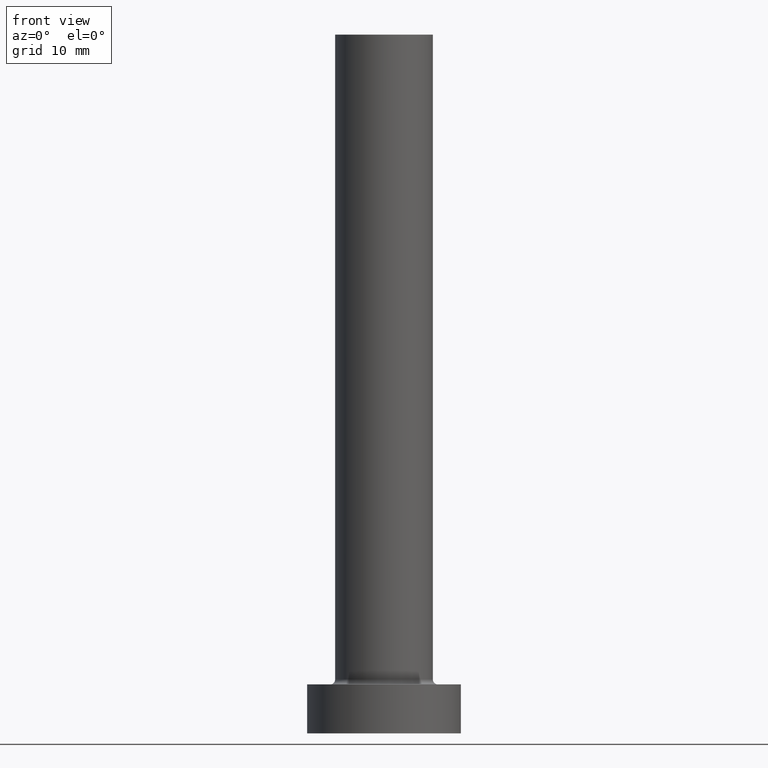
[diagram: clean part render]
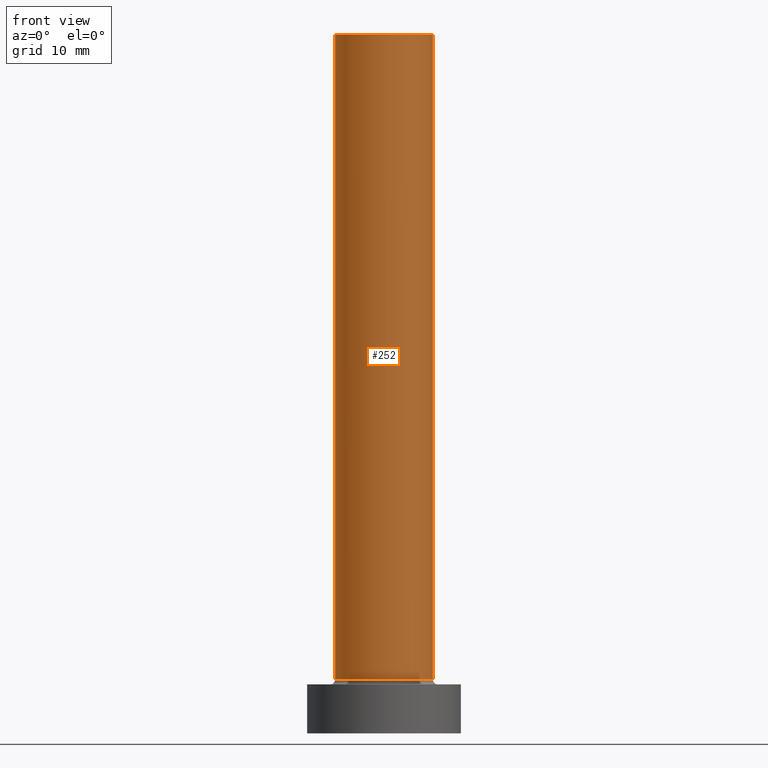
[diagram: same view with one face highlighted and labeled with its STEP entity id]
A machine part, front view. The second image highlights one B-rep face of the part: STEP entity #252.
In plain terms, the highlighted cylindrical surface (partial cylindrical patch) has radius 7 mm, axis along (-0, -0, -1).
Its self-contained STEP definition (entity closure, byte-faithful):
#9 = CARTESIAN_POINT ( 'NONE',  ( 0.000000000000000000, 0.000000000000000000, 100.0000000000000000 ) ) ;
#20 = FACE_OUTER_BOUND ( 'NONE', #74, .T. ) ;
#25 = CARTESIAN_POINT ( 'NONE',  ( 7.000000000000000888, 8.572527594031472204E-16, 100.0000000000000000 ) ) ;
#27 = AXIS2_PLACEMENT_3D ( 'NONE', #91, #236, #455 ) ;
#42 = VERTEX_POINT ( 'NONE', #58 ) ;
#43 = DIRECTION ( 'NONE',  ( -1.000000000000000000, 0.000000000000000000, 0.000000000000000000 ) ) ;
#44 = AXIS2_PLACEMENT_3D ( 'NONE', #9, #361, #43 ) ;
#58 = CARTESIAN_POINT ( 'NONE',  ( -7.000000000000000888, 0.000000000000000000, 7.699999999999998401 ) ) ;
#66 = LINE ( 'NONE', #25, #295 ) ;
#69 = EDGE_CURVE ( 'NONE', #42, #460, #101, .T. ) ;
#74 = EDGE_LOOP ( 'NONE', ( #80, #217, #352, #253 ) ) ;
#80 = ORIENTED_EDGE ( 'NONE', *, *, #445, .F. ) ;
#91 = CARTESIAN_POINT ( 'NONE',  ( 0.000000000000000000, 0.000000000000000000, 100.0000000000000000 ) ) ;
#101 = CIRCLE ( 'NONE', #321, 7.000000000000000888 ) ;
#123 = VECTOR ( 'NONE', #211, 1000.000000000000000 ) ;
#144 = CARTESIAN_POINT ( 'NONE',  ( -7.000000000000000888, 0.000000000000000000, 100.0000000000000000 ) ) ;
#165 = CARTESIAN_POINT ( 'NONE',  ( 7.000000000000000888, 8.572527594031472204E-16, 100.0000000000000000 ) ) ;
#167 = DIRECTION ( 'NONE',  ( 0.000000000000000000, 0.000000000000000000, 1.000000000000000000 ) ) ;
#169 = CARTESIAN_POINT ( 'NONE',  ( 0.000000000000000000, 0.000000000000000000, 7.699999999999998401 ) ) ;
#211 = DIRECTION ( 'NONE',  ( -0.000000000000000000, -0.000000000000000000, -1.000000000000000000 ) ) ;
#212 = DIRECTION ( 'NONE',  ( -0.000000000000000000, -0.000000000000000000, -1.000000000000000000 ) ) ;
#217 = ORIENTED_EDGE ( 'NONE', *, *, #397, .F. ) ;
#222 = EDGE_CURVE ( 'NONE', #436, #42, #320, .T. ) ;
#236 = DIRECTION ( 'NONE',  ( 0.000000000000000000, 0.000000000000000000, 1.000000000000000000 ) ) ;
#252 = ADVANCED_FACE ( 'NONE', ( #20 ), #364, .T. ) ;
#253 = ORIENTED_EDGE ( 'NONE', *, *, #69, .T. ) ;
#287 = CARTESIAN_POINT ( 'NONE',  ( -7.000000000000000888, 0.000000000000000000, 100.0000000000000000 ) ) ;
#295 = VECTOR ( 'NONE', #212, 1000.000000000000000 ) ;
#320 = LINE ( 'NONE', #144, #123 ) ;
#321 = AXIS2_PLACEMENT_3D ( 'NONE', #169, #167, #406 ) ;
#352 = ORIENTED_EDGE ( 'NONE', *, *, #222, .T. ) ;
#361 = DIRECTION ( 'NONE',  ( -0.000000000000000000, -0.000000000000000000, -1.000000000000000000 ) ) ;
#364 = CYLINDRICAL_SURFACE ( 'NONE', #44, 7.000000000000000888 ) ;
#371 = VERTEX_POINT ( 'NONE', #165 ) ;
#397 = EDGE_CURVE ( 'NONE', #436, #371, #426, .T. ) ;
#406 = DIRECTION ( 'NONE',  ( 1.000000000000000000, 0.000000000000000000, 0.000000000000000000 ) ) ;
#421 = CARTESIAN_POINT ( 'NONE',  ( 7.000000000000000888, 8.572527594031472204E-16, 7.699999999999998401 ) ) ;
#426 = CIRCLE ( 'NONE', #27, 7.000000000000000888 ) ;
#436 = VERTEX_POINT ( 'NONE', #287 ) ;
#445 = EDGE_CURVE ( 'NONE', #371, #460, #66, .T. ) ;
#455 = DIRECTION ( 'NONE',  ( 1.000000000000000000, 0.000000000000000000, 0.000000000000000000 ) ) ;
#460 = VERTEX_POINT ( 'NONE', #421 ) ;